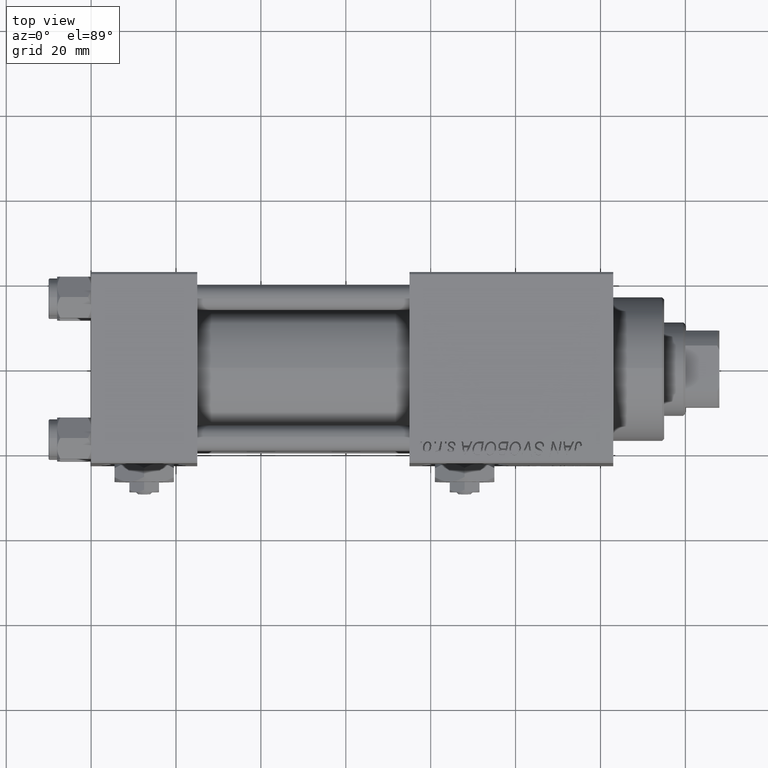
[diagram: clean part render]
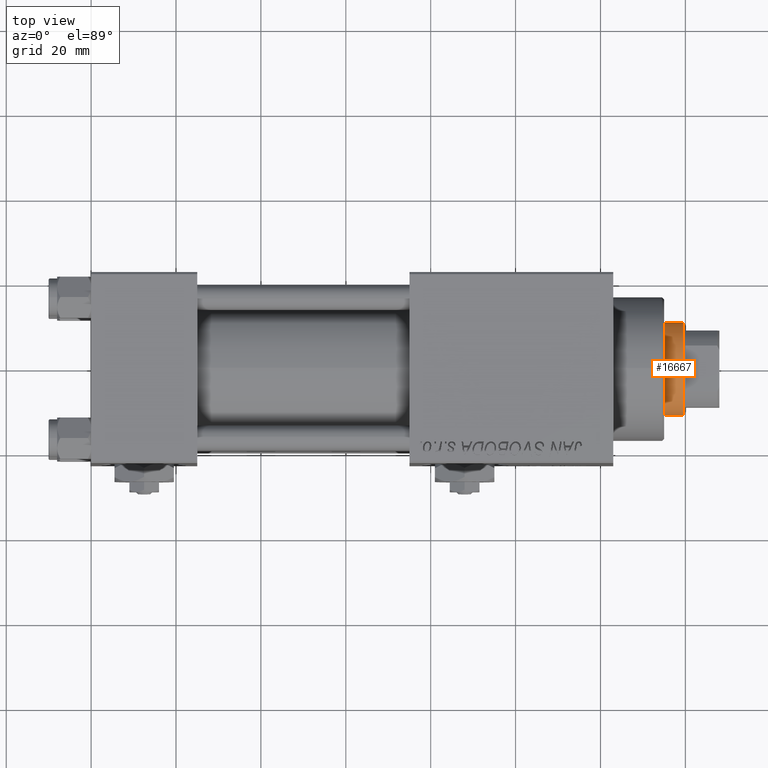
[diagram: same view with one face highlighted and labeled with its STEP entity id]
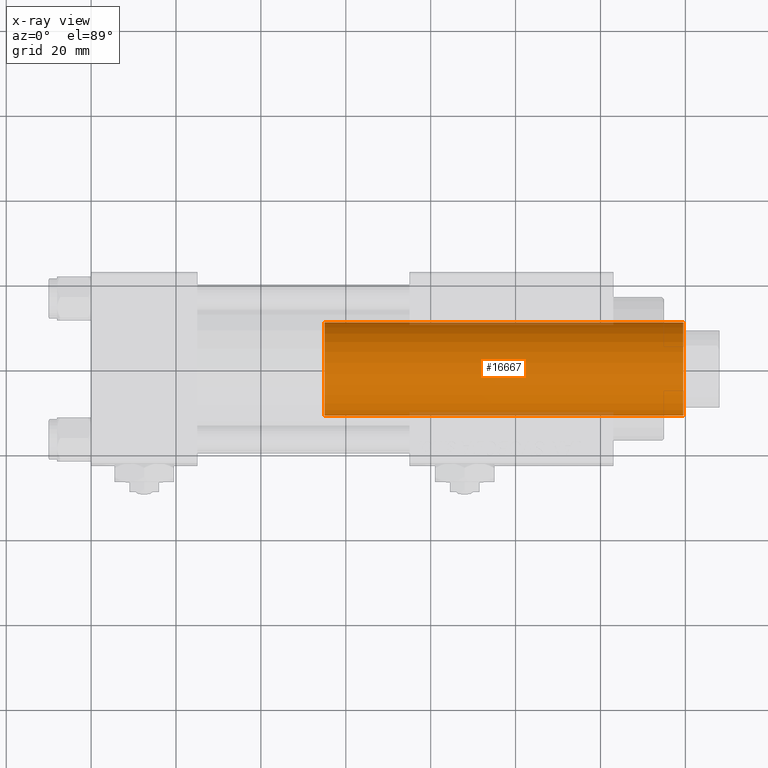
[diagram: x-ray of the same camera — body ghosted, the highlighted face saturated]
A machine part, top view. The second image highlights one B-rep face of the part: STEP entity #16667.
The next image is the same camera in x-ray: the body ghosted, the highlighted face saturated — about 4% of this face is hidden behind the body in this view.
In plain terms, the highlighted cylindrical surface (partial cylindrical patch) has radius 11 mm, axis along (-1, 0, 0).
Its self-contained STEP definition (entity closure, byte-faithful):
#644 = VERTEX_POINT ( 'NONE', #35625 ) ;
#1774 = CIRCLE ( 'NONE', #10214, 11.00000000000000000 ) ;
#3106 = DIRECTION ( 'NONE',  ( -0.000000000000000000, -0.000000000000000000, -1.000000000000000000 ) ) ;
#4246 = VECTOR ( 'NONE', #43351, 1000.000000000000000 ) ;
#5512 = CARTESIAN_POINT ( 'NONE',  ( 0.000000000000000000, 0.000000000000000000, 114.5000000000000142 ) ) ;
#6838 = CARTESIAN_POINT ( 'NONE',  ( 0.000000000000000000, 0.000000000000000000, 30.00000000000000000 ) ) ;
#7827 = ORIENTED_EDGE ( 'NONE', *, *, #28340, .T. ) ;
#8514 = CARTESIAN_POINT ( 'NONE',  ( -11.00000000000000000, 0.000000000000000000, 114.5000000000000142 ) ) ;
#10214 = AXIS2_PLACEMENT_3D ( 'NONE', #5512, #21599, #41668 ) ;
#10904 = ORIENTED_EDGE ( 'NONE', *, *, #48301, .F. ) ;
#11150 = CARTESIAN_POINT ( 'NONE',  ( -11.00000000000000000, 0.000000000000000000, 115.0000000000000000 ) ) ;
#15786 = FACE_OUTER_BOUND ( 'NONE', #26683, .T. ) ;
#16667 = ADVANCED_FACE ( 'NONE', ( #15786 ), #47709, .T. ) ;
#19650 = EDGE_CURVE ( 'NONE', #644, #36746, #39498, .T. ) ;
#21235 = LINE ( 'NONE', #41299, #49433 ) ;
#21599 = DIRECTION ( 'NONE',  ( 0.000000000000000000, 0.000000000000000000, -1.000000000000000000 ) ) ;
#25166 = AXIS2_PLACEMENT_3D ( 'NONE', #6838, #35064, #47203 ) ;
#26615 = AXIS2_PLACEMENT_3D ( 'NONE', #26853, #3106, #31859 ) ;
#26683 = EDGE_LOOP ( 'NONE', ( #10904, #7827, #36486, #51272 ) ) ;
#26747 = EDGE_CURVE ( 'NONE', #27855, #644, #34902, .T. ) ;
#26853 = CARTESIAN_POINT ( 'NONE',  ( 0.000000000000000000, 0.000000000000000000, 115.0000000000000000 ) ) ;
#27855 = VERTEX_POINT ( 'NONE', #8514 ) ;
#28340 = EDGE_CURVE ( 'NONE', #32278, #27855, #1774, .T. ) ;
#31859 = DIRECTION ( 'NONE',  ( -1.000000000000000000, 0.000000000000000000, 0.000000000000000000 ) ) ;
#32278 = VERTEX_POINT ( 'NONE', #33525 ) ;
#33525 = CARTESIAN_POINT ( 'NONE',  ( 11.00000000000000000, 1.347111479062088405E-15, 114.5000000000000142 ) ) ;
#34902 = LINE ( 'NONE', #11150, #4246 ) ;
#35064 = DIRECTION ( 'NONE',  ( 0.000000000000000000, 0.000000000000000000, 1.000000000000000000 ) ) ;
#35625 = CARTESIAN_POINT ( 'NONE',  ( -11.00000000000000000, 0.000000000000000000, 30.00000000000000000 ) ) ;
#36304 = DIRECTION ( 'NONE',  ( -0.000000000000000000, -0.000000000000000000, -1.000000000000000000 ) ) ;
#36486 = ORIENTED_EDGE ( 'NONE', *, *, #26747, .T. ) ;
#36728 = CARTESIAN_POINT ( 'NONE',  ( 11.00000000000000000, 1.347111479062088405E-15, 30.00000000000000000 ) ) ;
#36746 = VERTEX_POINT ( 'NONE', #36728 ) ;
#39498 = CIRCLE ( 'NONE', #25166, 11.00000000000000000 ) ;
#41299 = CARTESIAN_POINT ( 'NONE',  ( 11.00000000000000000, 1.347111479062088405E-15, 115.0000000000000000 ) ) ;
#41668 = DIRECTION ( 'NONE',  ( 1.000000000000000000, 0.000000000000000000, 0.000000000000000000 ) ) ;
#43351 = DIRECTION ( 'NONE',  ( -0.000000000000000000, -0.000000000000000000, -1.000000000000000000 ) ) ;
#47203 = DIRECTION ( 'NONE',  ( 1.000000000000000000, 0.000000000000000000, 0.000000000000000000 ) ) ;
#47709 = CYLINDRICAL_SURFACE ( 'NONE', #26615, 11.00000000000000000 ) ;
#48301 = EDGE_CURVE ( 'NONE', #32278, #36746, #21235, .T. ) ;
#49433 = VECTOR ( 'NONE', #36304, 1000.000000000000000 ) ;
#51272 = ORIENTED_EDGE ( 'NONE', *, *, #19650, .T. ) ;